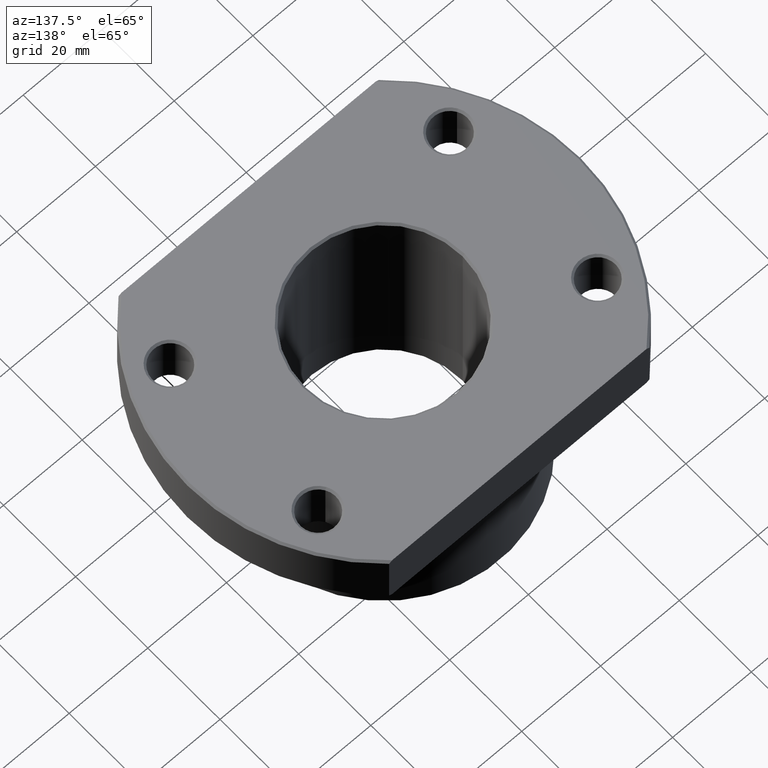
[diagram: clean part render]
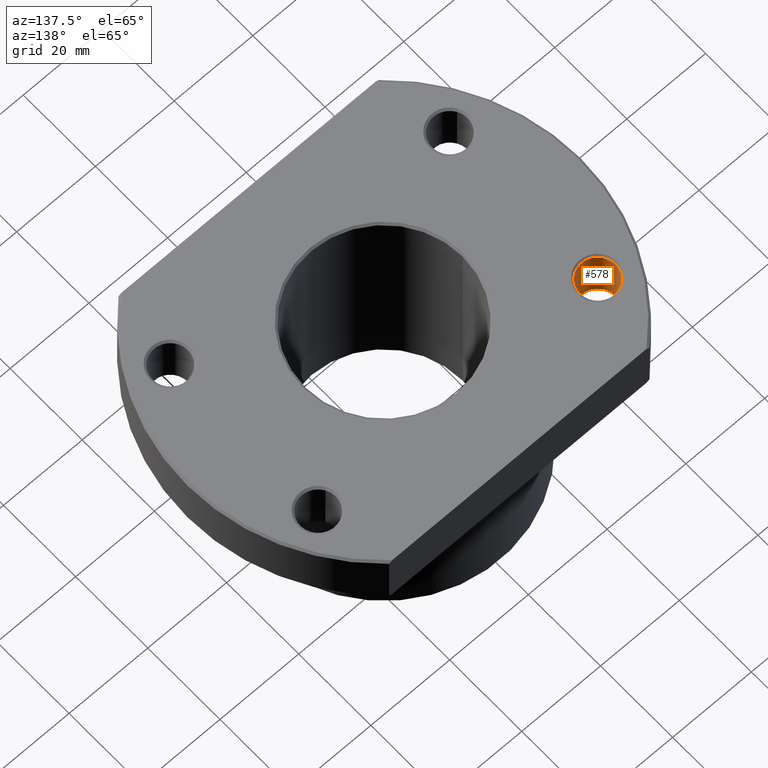
[diagram: same view with one face highlighted and labeled with its STEP entity id]
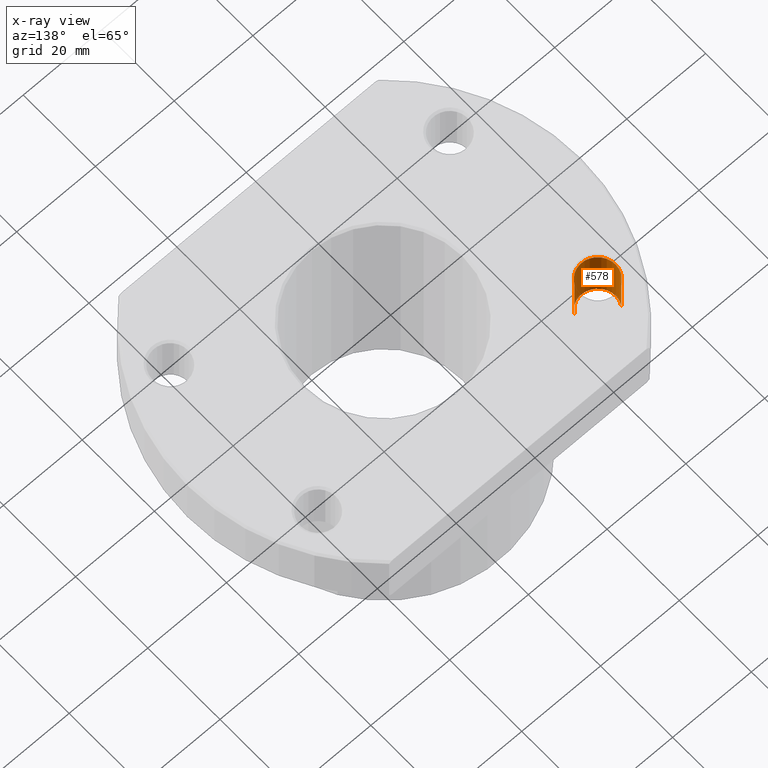
[diagram: x-ray of the same camera — body ghosted, the highlighted face saturated]
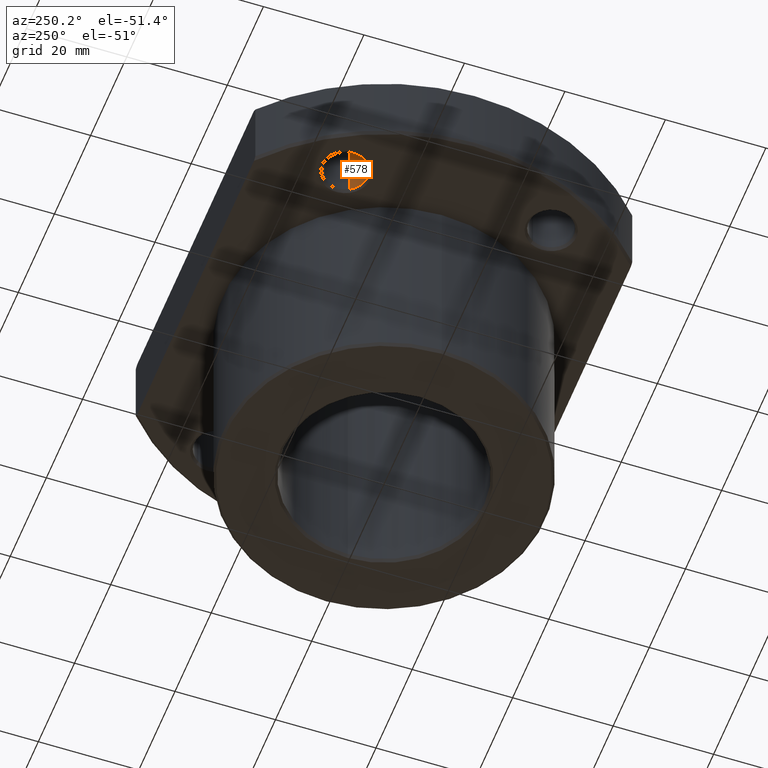
[diagram: same view with one face highlighted and labeled with its STEP entity id]
A machine part, auxiliary view. The second image highlights one B-rep face of the part: STEP entity #578.
The next image is the same camera in x-ray: the body ghosted, the highlighted face saturated — about 2% of this face is hidden behind the body in this view.
A second angle (auxiliary view) of the same face is appended — the face is thin or edge-on in the first view.
In plain terms, the highlighted cylindrical surface (edge-blend (fillet) strip) has radius 4.5 mm, axis along (0, 0, 1).
Its self-contained STEP definition (entity closure, byte-faithful):
#502=AXIS2_PLACEMENT_3D('Circle Axis2P3D',#500,#501,$) ;
#551=AXIS2_PLACEMENT_3D('Cylinder Axis2P3D',#548,#549,#550) ;
#555=AXIS2_PLACEMENT_3D('Circle Axis2P3D',#553,#554,$) ;
#497=CARTESIAN_POINT('Vertex',(-39.4041558722,22.75,41.5)) ;
#500=CARTESIAN_POINT('Axis2P3D Location',(-35.5070415552,20.5,41.5)) ;
#504=CARTESIAN_POINT('Vertex',(-31.6099272381,18.25,41.5)) ;
#548=CARTESIAN_POINT('Axis2P3D Location',(-35.5070415552,20.5,48.5)) ;
#553=CARTESIAN_POINT('Axis2P3D Location',(-35.5070415552,20.5,55.5)) ;
#557=CARTESIAN_POINT('Vertex',(-39.4041558722,22.75,55.5)) ;
#559=CARTESIAN_POINT('Vertex',(-31.6099272381,18.25,55.5)) ;
#562=CARTESIAN_POINT('Line Origine',(-31.6099272381,18.25,48.5)) ;
#567=CARTESIAN_POINT('Line Origine',(-39.4041558722,22.75,48.5)) ;
#501=DIRECTION('Axis2P3D Direction',(1.11796591005E-014,1.55327396983E-014,1.)) ;
#549=DIRECTION('Axis2P3D Direction',(0.,0.,1.)) ;
#550=DIRECTION('Axis2P3D XDirection',(0.866025403784,-0.5,0.)) ;
#554=DIRECTION('Axis2P3D Direction',(0.,0.,1.)) ;
#563=DIRECTION('Vector Direction',(0.,0.,1.)) ;
#568=DIRECTION('Vector Direction',(0.,0.,1.)) ;
#564=VECTOR('Line Direction',#563,1.) ;
#569=VECTOR('Line Direction',#568,1.) ;
#573=ORIENTED_EDGE('',*,*,#561,.T.) ;
#574=ORIENTED_EDGE('',*,*,#566,.F.) ;
#575=ORIENTED_EDGE('',*,*,#506,.F.) ;
#576=ORIENTED_EDGE('',*,*,#571,.T.) ;
#578=ADVANCED_FACE('',(#577),#552,.F.) ;
#503=CIRCLE('generated circle',#502,4.5) ;
#556=CIRCLE('generated circle',#555,4.5) ;
#552=CYLINDRICAL_SURFACE('generated cylinder',#551,4.5) ;
#506=EDGE_CURVE('',#498,#505,#503,.T.) ;
#561=EDGE_CURVE('',#558,#560,#556,.T.) ;
#566=EDGE_CURVE('',#505,#560,#565,.T.) ;
#571=EDGE_CURVE('',#498,#558,#570,.T.) ;
#572=EDGE_LOOP('',(#573,#574,#575,#576)) ;
#577=FACE_OUTER_BOUND('',#572,.T.) ;
#565=LINE('Line',#562,#564) ;
#570=LINE('Line',#567,#569) ;
#498=VERTEX_POINT('',#497) ;
#505=VERTEX_POINT('',#504) ;
#558=VERTEX_POINT('',#557) ;
#560=VERTEX_POINT('',#559) ;